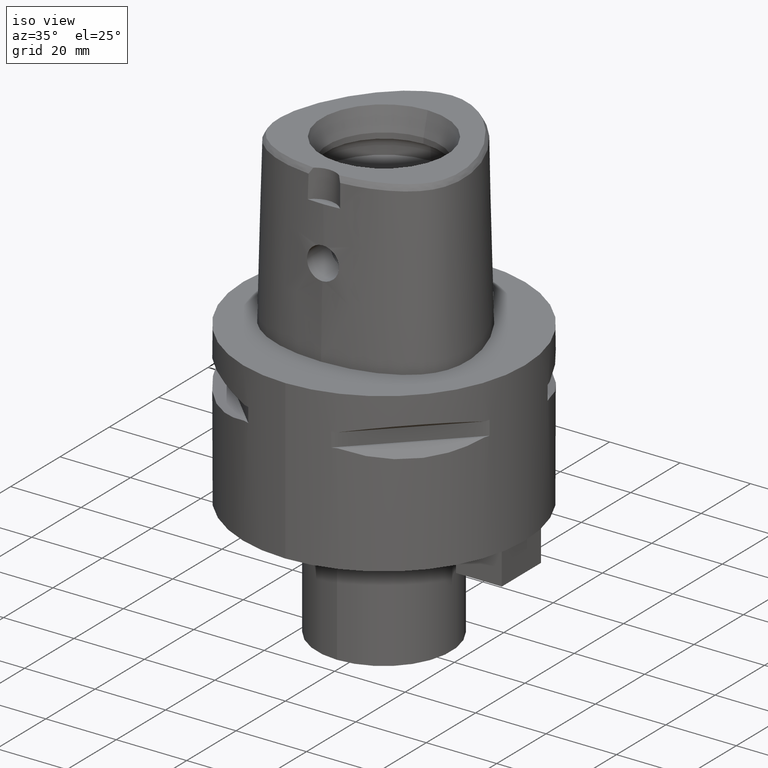
[diagram: clean part render]
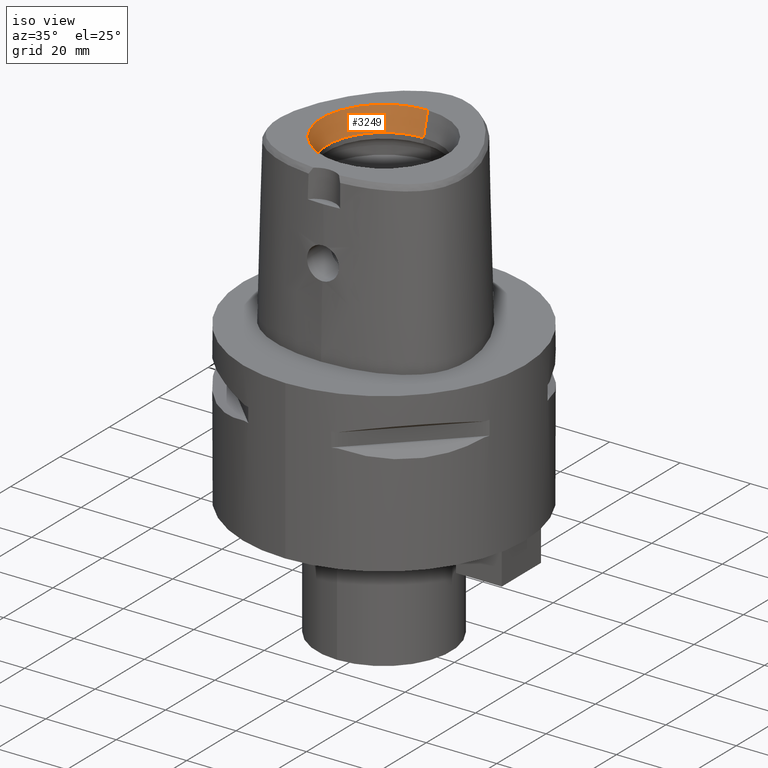
[diagram: same view with one face highlighted and labeled with its STEP entity id]
A machine part, iso view. The second image highlights one B-rep face of the part: STEP entity #3249.
In plain terms, the highlighted conical surface has half-angle 15 deg.
Its self-contained STEP definition (entity closure, byte-faithful):
#120=CARTESIAN_POINT('',(0.E0,0.E0,4.8E1));
#121=DIRECTION('',(0.E0,0.E0,1.E0));
#122=DIRECTION('',(0.E0,1.E0,0.E0));
#123=AXIS2_PLACEMENT_3D('',#120,#121,#122);
#1129=CARTESIAN_POINT('',(0.E0,0.E0,4.16E1));
#1130=DIRECTION('',(0.E0,0.E0,1.E0));
#1131=DIRECTION('',(0.E0,1.E0,0.E0));
#1132=AXIS2_PLACEMENT_3D('',#1129,#1130,#1131);
#1137=DIRECTION('',(0.E0,-2.588190451026E-1,9.659258262891E-1));
#1138=VECTOR('',#1137,6.625767554625E0);
#1139=CARTESIAN_POINT('',(0.E0,-1.6E1,4.16E1));
#1140=LINE('',#1139,#1138);
#1152=DIRECTION('',(0.E0,2.588190451026E-1,9.659258262891E-1));
#1153=VECTOR('',#1152,6.625767554625E0);
#1154=CARTESIAN_POINT('',(0.E0,1.6E1,4.16E1));
#1155=LINE('',#1154,#1153);
#1604=CARTESIAN_POINT('',(0.E0,1.771487483156E1,4.8E1));
#1605=CARTESIAN_POINT('',(0.E0,-1.771487483156E1,4.8E1));
#1606=VERTEX_POINT('',#1604);
#1607=VERTEX_POINT('',#1605);
#1766=CARTESIAN_POINT('',(0.E0,-1.6E1,4.16E1));
#1767=VERTEX_POINT('',#1766);
#1768=CARTESIAN_POINT('',(0.E0,1.6E1,4.16E1));
#1769=VERTEX_POINT('',#1768);
#3236=CARTESIAN_POINT('',(0.E0,0.E0,4.48E1));
#3237=DIRECTION('',(0.E0,0.E0,1.E0));
#3238=DIRECTION('',(0.E0,1.E0,0.E0));
#3239=AXIS2_PLACEMENT_3D('',#3236,#3237,#3238);
#3240=CONICAL_SURFACE('',#3239,1.685743741578E1,1.5E1);
#3241=ORIENTED_EDGE('',*,*,#1799,.F.);
#3243=ORIENTED_EDGE('',*,*,#3242,.F.);
#3244=ORIENTED_EDGE('',*,*,#3229,.T.);
#3246=ORIENTED_EDGE('',*,*,#3245,.T.);
#3247=EDGE_LOOP('',(#3241,#3243,#3244,#3246));
#3248=FACE_OUTER_BOUND('',#3247,.F.);
#124=CIRCLE('',#123,1.771487483156E1);
#1133=CIRCLE('',#1132,1.6E1);
#1799=EDGE_CURVE('',#1606,#1607,#124,.T.);
#3229=EDGE_CURVE('',#1769,#1767,#1133,.T.);
#3242=EDGE_CURVE('',#1769,#1606,#1155,.T.);
#3245=EDGE_CURVE('',#1767,#1607,#1140,.T.);
#3249=ADVANCED_FACE('',(#3248),#3240,.F.);